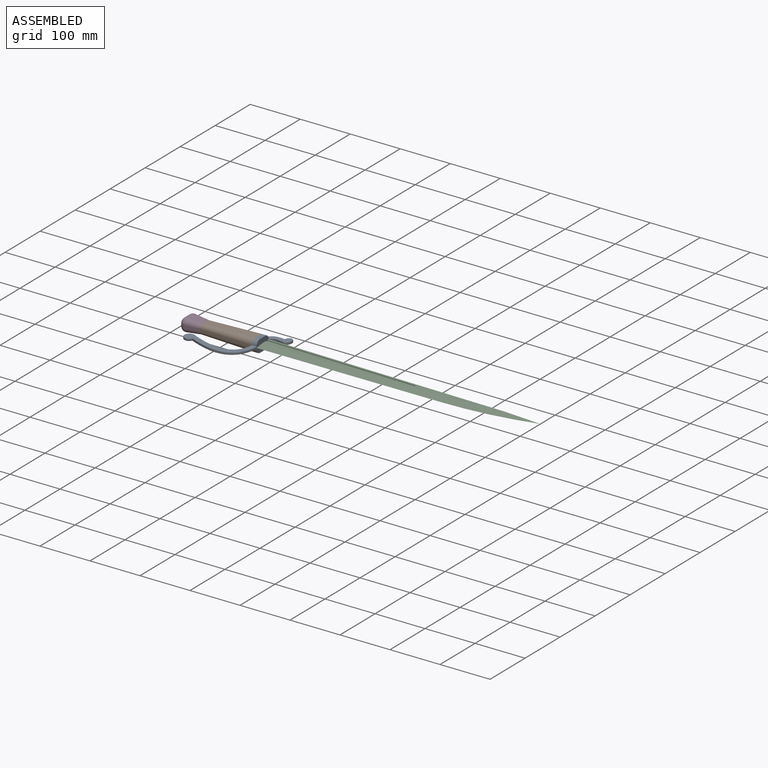
[diagram: assembled view]
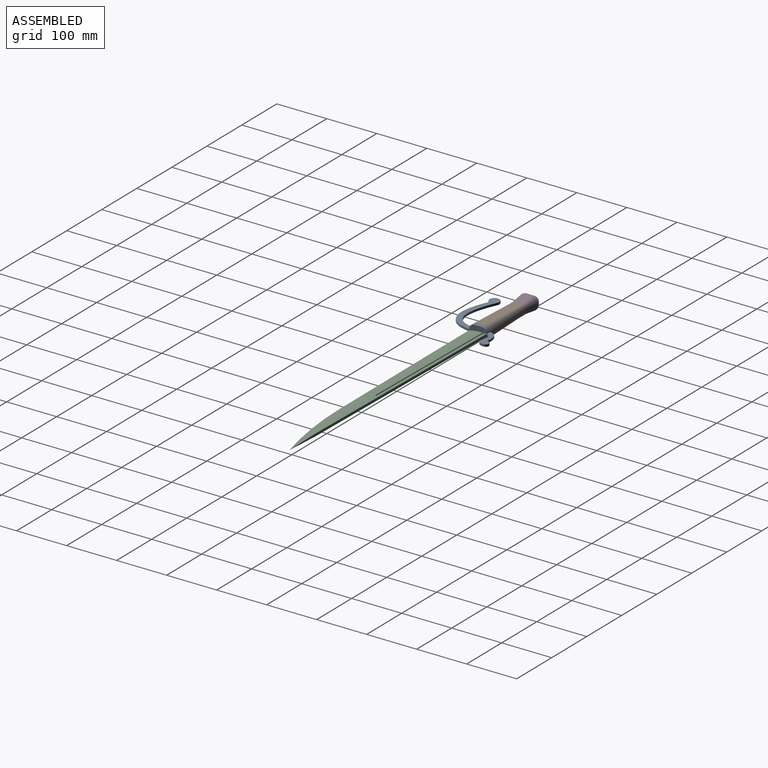
[diagram: assembled view, second angle]
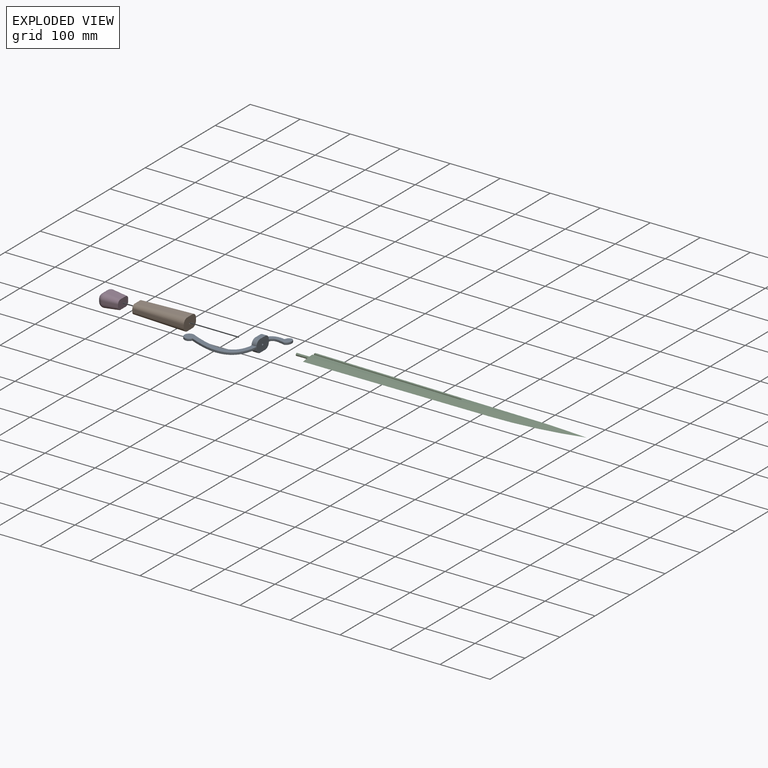
[diagram: exploded view]
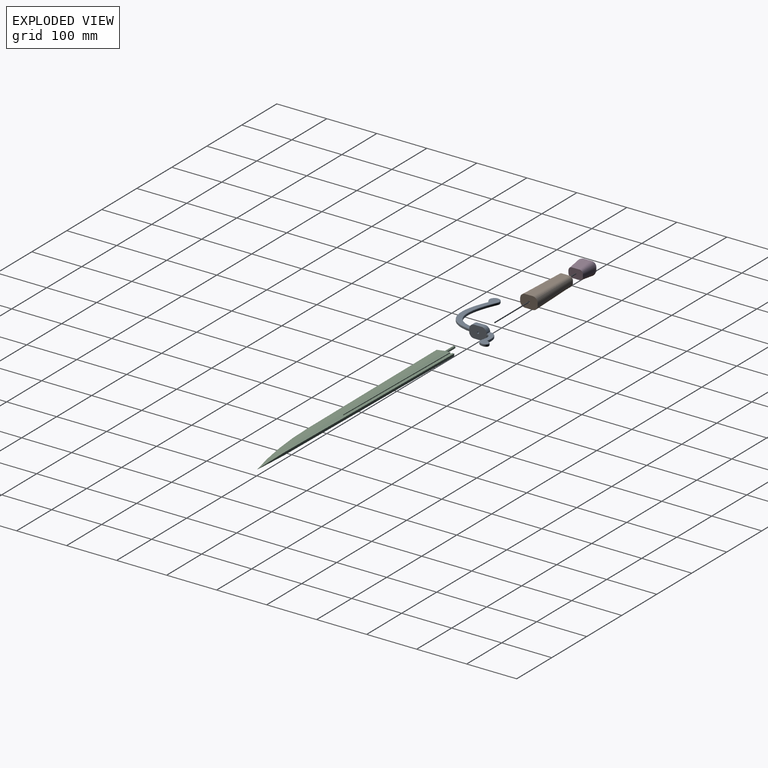
[diagram: exploded view, second angle]
ASSEMBLY  parts=4 mates=3
PART A: 49 faces, bbox 175.5x25.5x108.8 mm
  f0: plane 42.72x23.56mm, normal (0,1,0), area 416.8mm2, adj f19,f22,f23,f24,f25,f26,f27,f28
  f1: plane 41.99x25.52mm, normal (-1,0,0), area 779.8mm2, adj f3,f4,f11,f13,f16,f17,f18,f19
  f2: plane 35.02x25.02mm, normal (1,0,0), area 776.5mm2, adj f3,f5,f15,f17,f18,f19,f20,f21
  f3: plane 15x10mm, normal (0,-1,0), area 150mm2, adj f1,f2,f20,f21
  f4: plane 122.04x47.75mm, normal (0,1,0), area 1401.6mm2, adj f1,f18,f39,f40,f41,f42,f43
  f5: extruded ~7.27x6.26mm, area 31.7mm2, adj f2,f6,f22,f29
  f6: extruded ~12.9x3mm, area 39mm2, adj f5,f7,f24,f31
  f7: extruded ~5.56x3mm, area 17.2mm2, adj f6,f8,f26,f33
  f8: extruded ~3x0.28mm, area 0.9mm2, adj f7,f9,f28,f35
  f9: extruded ~19.69x14.3mm, area 123.1mm2, adj f8,f10,f27,f34
  f10: extruded ~29.78x13.11mm, area 107.4mm2, adj f9,f11,f25,f32
  f11: extruded ~3.59x3mm, area 10.9mm2, adj f1,f10,f23,f30
  f12: plane 42.72x23.57mm, normal (0,-1,0), area 417mm2, adj f21,f29,f30,f31,f32,f33,f34,f35
  f13: extruded ~93.38x36.98mm, area 350.2mm2, adj f1,f14,f39,f44
  f14: extruded ~6.43x3mm, area 21.1mm2, adj f13,f38,f41,f46
  f15: extruded ~104.96x48.69mm, area 407.4mm2, adj f2,f37,f40,f45
  f16: plane 122.04x47.75mm, normal (0,-1,0), area 1401.6mm2, adj f1,f20,f44,f45,f46,f47,f48
  f17: plane 15x10mm, normal (0,1,0), area 150mm2, adj f1,f2,f18,f19
  f18: cylinder r=10mm len=10.9mm, axis (-1,0,0), area 157.5mm2, adj f1,f2,f4,f17,f40
  f19: cylinder r=10mm len=11mm, axis (1,0,0), area 158mm2, adj f0,f1,f2,f17,f22,f23
  f20: cylinder r=10mm len=10.9mm, axis (-1,0,0), area 157.5mm2, adj f1,f2,f3,f16,f45
  f21: cylinder r=10mm len=11mm, axis (1,0,0), area 158mm2, adj f1,f2,f3,f12,f29,f30
  f22: bspline ~17.48x10.44mm, area 17.4mm2, adj f0,f2,f5,f19,f24
  f23: bspline ~4.82x1.83mm, area 5.6mm2, adj f0,f1,f11,f19,f25
  f24: bspline ~38.2x5.72mm, area 20.7mm2, adj f0,f6,f22,f26
  f25: bspline ~34.87x20.86mm, area 56.1mm2, adj f0,f10,f23,f27
  f26: bspline ~7.83x2.85mm, area 9mm2, adj f0,f7,f24,f28
  f27: bspline ~19.72x14.61mm, area 62.5mm2, adj f0,f9,f25,f28
  f28: bspline ~1.07x1mm, area 0.4mm2, adj f0,f8,f26,f27
  f29: bspline ~17.48x10.44mm, area 17.4mm2, adj f2,f5,f12,f21,f31
  f30: bspline ~4.82x1.83mm, area 5.6mm2, adj f1,f11,f12,f21,f32
  f31: bspline ~38.2x5.72mm, area 20.7mm2, adj f6,f12,f29,f33
  f32: bspline ~34.87x20.86mm, area 56.1mm2, adj f10,f12,f30,f34
  f33: bspline ~7.83x2.85mm, area 9mm2, adj f7,f12,f31,f35
  f34: bspline ~19.72x14.6mm, area 62.5mm2, adj f9,f12,f32,f35
  f35: bspline ~1.07x1mm, area 0.4mm2, adj f8,f12,f33,f34
  f36: cylinder r=2mm len=10mm, axis (1,0,0), area 125.7mm2, adj f1,f2
  f37: cylinder r=10mm len=20mm, axis (0,1,0), area 140.7mm2, adj f15,f38,f42,f47
  f38: extruded ~3x0.19mm, area 0.6mm2, adj f14,f37,f43,f48
  f39: bspline ~131.3x38.26mm, area 179.4mm2, adj f1,f4,f13,f41
  f40: bspline ~107.62x49.93mm, area 212.8mm2, adj f2,f4,f15,f18,f42
  f41: bspline ~8.22x4.33mm, area 11mm2, adj f4,f14,f39,f43
  f42: torus R=9mm, axis (0,-1,0), area 71.8mm2, adj f4,f37,f40,f43
  f43: bspline ~1.03x1mm, area 0.3mm2, adj f4,f38,f41,f42
  f44: bspline ~131.3x38.26mm, area 179.4mm2, adj f1,f13,f16,f46
  f45: bspline ~107.62x49.93mm, area 212.8mm2, adj f2,f15,f16,f20,f47
  f46: bspline ~8.21x4.35mm, area 11mm2, adj f14,f16,f44,f48
  f47: torus R=9mm, axis (0,-1,0), area 71.8mm2, adj f16,f37,f45,f48
  f48: bspline ~1.03x1mm, area 0.3mm2, adj f16,f38,f46,f47
PART B: 12 faces, bbox 25x35x105 mm
  f0: plane 29x19mm, normal (0,0,1), area 508.9mm2, adj f2,f3,f4,f5,f6,f7,f8,f9
  f1: plane 35x25mm, normal (0,0,-1), area 776.6mm2, adj f2,f3,f4,f5,f6,f7,f8,f9
  f2: cone r=7mm half-angle=1.6deg, axis (0,0,-1), area 1402.5mm2, adj f0,f1,f3,f4
  f3: plane 105x5mm, normal (0,1,0.03), area 525.2mm2, adj f0,f1,f2,f5
  f4: plane 105x15mm, normal (1,0,0.03), area 1575.6mm2, adj f0,f1,f2,f6
  f5: cone r=7mm half-angle=1.6deg, axis (0,0,-1), area 1402.5mm2, adj f0,f1,f3,f7
  f6: cone r=7mm half-angle=1.6deg, axis (0,0,-1), area 1402.5mm2, adj f0,f1,f4,f8
  f7: plane 105x15mm, normal (-1,0,0.03), area 1575.6mm2, adj f0,f1,f5,f9
  f8: plane 105x5mm, normal (0,-1,0.03), area 525.2mm2, adj f0,f1,f6,f9
  f9: cone r=7mm half-angle=1.6deg, axis (0,0,-1), area 1402.5mm2, adj f0,f1,f7,f8
  f10: cone r=0mm half-angle=59deg, axis (0,0,-1), area 14.7mm2, adj f11
  f11: cylinder r=2mm len=15mm, axis (0,0,-1), area 188.5mm2, adj f1,f10
PART C: 19 faces, bbox 575x41.9x5 mm
  f0: plane 17.5x5mm, normal (-1,0,0), area 65.7mm2, adj f1,f2,f3,f4,f6,f8,f10,f11
  f1: plane 299.92x9.15mm, normal (0,0,1), area 1198.1mm2, adj f0,f6,f7,f8
  f2: plane 299.92x9.15mm, normal (0,0,-1), area 1198.1mm2, adj f0,f3,f4,f5
  f3: plane 297.89x5.15mm, normal (0.02,1,0), area 446.9mm2, adj f0,f2,f5,f11
  f4: plane 297.96x5.15mm, normal (-0.02,-1,0), area 447mm2, adj f0,f2,f5,f11
  f5: cylinder r=2mm len=4mm, axis (0,0,1), area 9.4mm2, adj f2,f3,f4,f11
  f6: plane 297.96x5.15mm, normal (-0.02,-1,0), area 447mm2, adj f0,f1,f7,f12
  f7: cylinder r=2mm len=4mm, axis (0,0,1), area 9.4mm2, adj f1,f6,f8,f12
  f8: plane 297.89x5.15mm, normal (0.02,1,0), area 446.9mm2, adj f0,f1,f7,f12
  f9: plane 17.5x5mm, normal (-1,0,0), area 35.2mm2, adj f11,f12,f13,f15,f17
  f10: plane 550x9.5mm, normal (0.02,1,0), area 2576.2mm2, adj f0,f11,f12,f16,f18
  f11: plane 474.59x18mm, normal (0,0,-1), area 4696.9mm2, adj f0,f3,f4,f5,f9,f10,f17,f18
  f12: plane 474.59x18mm, normal (0,0,1), area 4696.9mm2, adj f0,f6,f7,f8,f9,f10,f15,f16
  f13: cylinder r=2.5mm len=25mm, axis (1,0,0), area 392.7mm2, adj f0,f9,f14
  f14: plane 5x5mm, normal (-1,0,0), area 19.6mm2, adj f13
  f15: plane 370.11x18.39mm, normal (0,-0.15,0.99), area 6359.1mm2, adj f9,f12,f16,f17
  f16: cone r=685.92mm half-angle=81.6deg, axis (0,0,-1), area 2513.7mm2, adj f10,f12,f15,f18
  f17: plane 370.11x18.39mm, normal (0,-0.15,-0.99), area 6359.1mm2, adj f9,f11,f15,f18
  f18: cone r=702.92mm half-angle=81.6deg, axis (0,0,1), area 2513.7mm2, adj f10,f11,f16,f17
PART D: 18 faces, bbox 26.2x36.2x40 mm
  f0: cone r=7mm half-angle=7deg, axis (0,0,-1), area 399.3mm2, adj f1,f7,f8,f13
  f1: plane 28.78x5mm, normal (0,0.99,0.12), area 145mm2, adj f0,f2,f8,f11
  f2: cone r=7mm half-angle=7deg, axis (0,0,-1), area 399.3mm2, adj f1,f3,f8,f10
  f3: plane 28.78x15mm, normal (-0.99,0,0.12), area 435mm2, adj f2,f4,f8,f12
  f4: cone r=7mm half-angle=7deg, axis (0,0,-1), area 399.3mm2, adj f3,f5,f8,f14
  f5: plane 28.78x5mm, normal (0,-0.99,0.12), area 145mm2, adj f4,f6,f8,f16
  f6: cone r=7mm half-angle=7deg, axis (0,0,-1), area 399.3mm2, adj f5,f7,f8,f17
  f7: plane 28.78x15mm, normal (0.99,0,0.12), area 435mm2, adj f0,f6,f8,f15
  f8: plane 29x19mm, normal (0,0,1), area 508.9mm2, adj f0,f1,f2,f3,f4,f5,f6,f7
  f9: plane 16.22x6.22mm, normal (0,0,-1), area 100.5mm2, adj f10,f11,f12,f13,f14,f15,f16,f17
  f10: torus R=0.61mm, axis (0,0,1), area 192.4mm2, adj f2,f9,f11,f12
  f11: cylinder r=10mm len=11.22mm, axis (-1,0,0), area 84.6mm2, adj f1,f9,f10,f13
  f12: cylinder r=10mm len=15mm, axis (0,-1,0), area 253.9mm2, adj f3,f9,f10,f14
  f13: torus R=0.61mm, axis (0,0,1), area 192.4mm2, adj f0,f9,f11,f15
  f14: torus R=0.61mm, axis (0,0,1), area 192.4mm2, adj f4,f9,f12,f16
  f15: cylinder r=10mm len=15mm, axis (0,-1,0), area 253.9mm2, adj f7,f9,f13,f17
  f16: cylinder r=10mm len=11.22mm, axis (-1,0,0), area 84.6mm2, adj f5,f9,f14,f17
  f17: torus R=0.61mm, axis (0,0,1), area 192.4mm2, adj f6,f9,f15,f16
PLACE A rot(axis=(-1,0,0),90deg) t=(-30.39,90.6,-50.03)mm
PLACE B rot(axis=(0.71,0,-0.71),180deg) t=(-30.39,108.1,-47.53)mm
PLACE C t=(-20.39,90.6,-48.53)mm
PLACE D rot(axis=(0,1,0),90deg) t=(-175.39,100.6,-45.03)mm
MATE fastened A.f21 <-> B.f9  axis (-1,0,0) through (-30.39,115.6,-45.03)mm
MATE fastened C.f13 <-> A.f36  axis (-1,0,0) through (-20.39,108.1,-47.53)mm
MATE fastened D.f8 <-> B.f10  axis (1,0,0) through (-135.39,108.1,-47.53)mm
